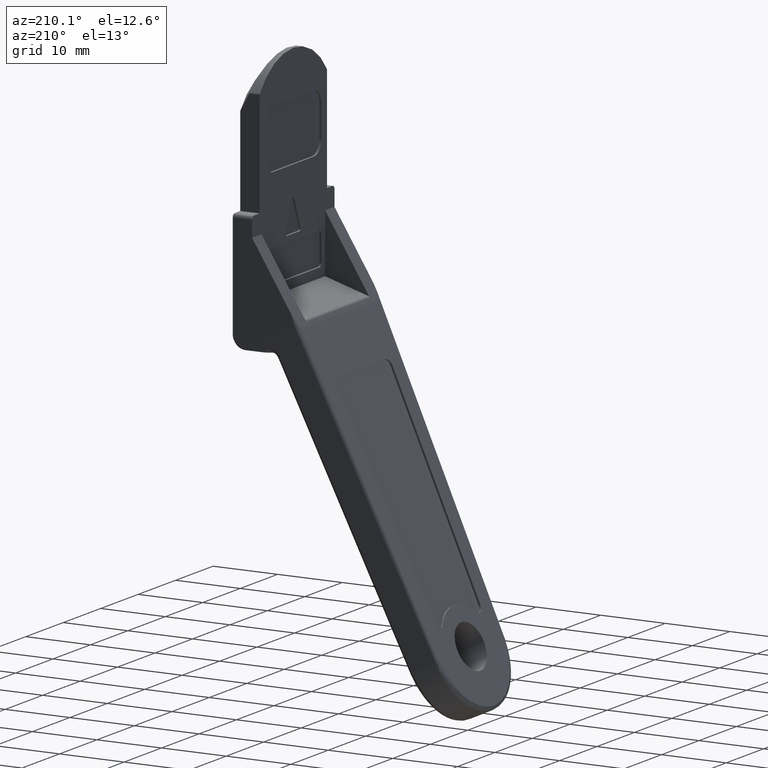
[diagram: clean part render]
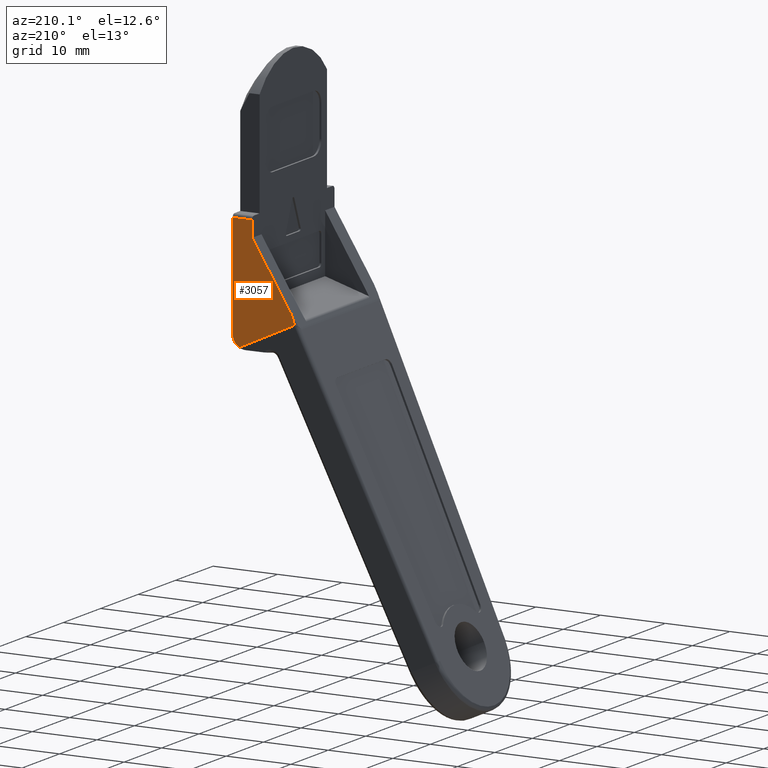
[diagram: same view with one face highlighted and labeled with its STEP entity id]
A machine part, auxiliary view. The second image highlights one B-rep face of the part: STEP entity #3057.
In plain terms, the highlighted face is a freeform B-spline surface patch.
Its self-contained STEP definition (entity closure, byte-faithful):
#307=CARTESIAN_POINT('',(-3.000000000000200,11.0,-10.500000000000000));
#308=VERTEX_POINT('',#307);
#329=CARTESIAN_POINT('',(0.0,11.0,-10.500000000000000));
#330=VERTEX_POINT('',#329);
#344=CARTESIAN_POINT('',(-3.000000000000200,11.0,-10.500000000000000));
#345=CARTESIAN_POINT('',(0.0,11.0,-10.500000000000000));
#346=QUASI_UNIFORM_CURVE('',1,(#344,#345),.UNSPECIFIED.,.F.,.U.);
#347=EDGE_CURVE('',#308,#330,#346,.T.);
#1031=CARTESIAN_POINT('',(-9.515585781713391,11.0,-24.270523602630899));
#1032=VERTEX_POINT('',#1031);
#1048=CARTESIAN_POINT('',(-1.008993985371242,11.0,-28.237212444973149));
#1049=VERTEX_POINT('',#1048);
#1050=CARTESIAN_POINT('',(-1.008993985371242,11.0,-28.237212444973149));
#1051=CARTESIAN_POINT('',(-9.515585781713391,11.0,-24.270523602630899));
#1052=QUASI_UNIFORM_CURVE('',1,(#1050,#1051),.UNSPECIFIED.,.F.,.U.);
#1053=EDGE_CURVE('',#1049,#1032,#1052,.T.);
#1141=CARTESIAN_POINT('',(-9.082473346423729,11.0,-22.820382664210602));
#1142=VERTEX_POINT('',#1141);
#1143=CARTESIAN_POINT('',(-9.515585781713387,11.0,-24.270523602630899));
#1144=CARTESIAN_POINT('',(-9.572316609588233,11.000000000000005,-24.114452666893520));
#1145=CARTESIAN_POINT('',(-9.082473346423729,11.0,-22.820382664210602));
#1153=(BOUNDED_CURVE()B_SPLINE_CURVE(2,(#1143,#1144,#1145),.UNSPECIFIED.,.F.,.U.)CURVE()GEOMETRIC_REPRESENTATION_ITEM()QUASI_UNIFORM_CURVE()RATIONAL_B_SPLINE_CURVE((1.0,0.973492748690436,1.0))REPRESENTATION_ITEM(''));
#1154=EDGE_CURVE('',#1032,#1142,#1153,.T.);
#3015=CARTESIAN_POINT('',(-9.996721022377974,11.0,-9.614026272751749));
#3016=CARTESIAN_POINT('',(0.475581184540372,11.0,-9.614026272751749));
#3017=CARTESIAN_POINT('',(-9.996721022377974,11.0,-29.123186647970510));
#3018=CARTESIAN_POINT('',(0.475581184540372,11.0,-29.123186647970510));
#3019=B_SPLINE_SURFACE_WITH_KNOTS('',1,1,((#3015,#3017),(#3016,#3018)),.UNSPECIFIED.,.F.,.F.,.U.,(2,2),(2,2),(0.0,10.472302206918350),(0.0,19.509160375218759),.UNSPECIFIED.);
#3020=CARTESIAN_POINT('',(-3.000000000000200,11.0,-12.962337000000000));
#3021=VERTEX_POINT('',#3020);
#3022=CARTESIAN_POINT('',(-3.000000000000200,11.0,-12.962337000000000));
#3023=CARTESIAN_POINT('',(-3.000000000000200,11.0,-10.500000000000000));
#3024=QUASI_UNIFORM_CURVE('',1,(#3022,#3023),.UNSPECIFIED.,.F.,.U.);
#3025=EDGE_CURVE('',#3021,#308,#3024,.T.);
#3026=ORIENTED_EDGE('',*,*,#3025,.T.);
#3027=ORIENTED_EDGE('',*,*,#347,.T.);
#3028=CARTESIAN_POINT('',(0.0,11.0,-26.500000000000000));
#3029=VERTEX_POINT('',#3028);
#3030=CARTESIAN_POINT('',(0.0,11.0,-10.500000000000000));
#3031=CARTESIAN_POINT('',(0.0,11.0,-26.500000000000000));
#3032=QUASI_UNIFORM_CURVE('',1,(#3030,#3031),.UNSPECIFIED.,.F.,.U.);
#3033=EDGE_CURVE('',#330,#3029,#3032,.T.);
#3034=ORIENTED_EDGE('',*,*,#3033,.T.);
#3035=CARTESIAN_POINT('',(-1.008993985371287,11.0,-28.237212444973071));
#3036=CARTESIAN_POINT('',(-1.999269E-013,11.000000000000002,-27.661624173590049));
#3037=CARTESIAN_POINT('',(0.0,11.0,-26.500000000000000));
#3045=(BOUNDED_CURVE()B_SPLINE_CURVE(2,(#3035,#3036,#3037),.UNSPECIFIED.,.F.,.U.)CURVE()GEOMETRIC_REPRESENTATION_ITEM()QUASI_UNIFORM_CURVE()RATIONAL_B_SPLINE_CURVE((1.0,0.864726259377630,1.0))REPRESENTATION_ITEM(''));
#3046=EDGE_CURVE('',#1049,#3029,#3045,.T.);
#3047=ORIENTED_EDGE('',*,*,#3046,.F.);
#3048=ORIENTED_EDGE('',*,*,#1053,.T.);
#3049=ORIENTED_EDGE('',*,*,#1154,.T.);
#3050=CARTESIAN_POINT('',(-9.082473346423729,11.0,-22.820382664210602));
#3051=CARTESIAN_POINT('',(-3.000000000000200,11.0,-12.962337000000000));
#3052=QUASI_UNIFORM_CURVE('',1,(#3050,#3051),.UNSPECIFIED.,.F.,.U.);
#3053=EDGE_CURVE('',#1142,#3021,#3052,.T.);
#3054=ORIENTED_EDGE('',*,*,#3053,.T.);
#3055=EDGE_LOOP('',(#3026,#3027,#3034,#3047,#3048,#3049,#3054));
#3056=FACE_OUTER_BOUND('',#3055,.T.);
#3057=ADVANCED_FACE('',(#3056),#3019,.T.);